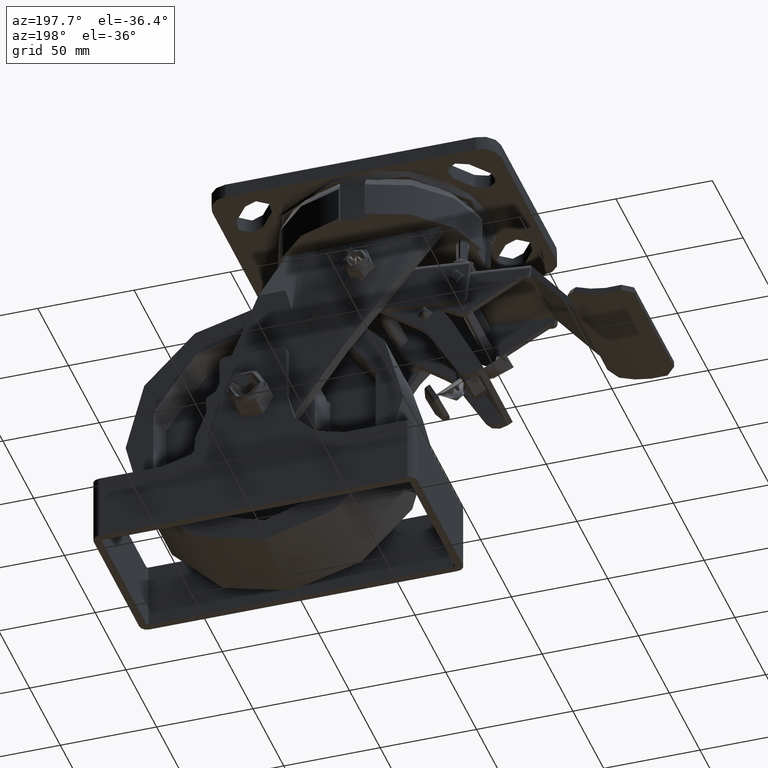
[diagram: clean part render]
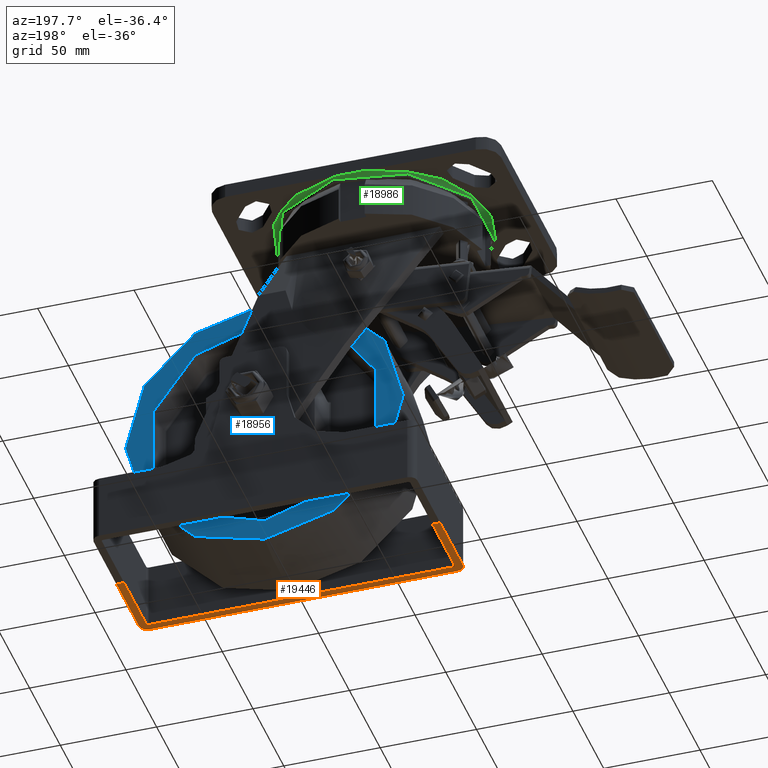
[diagram: same view with three faces highlighted in distinct colors, each labeled with its STEP entity id]
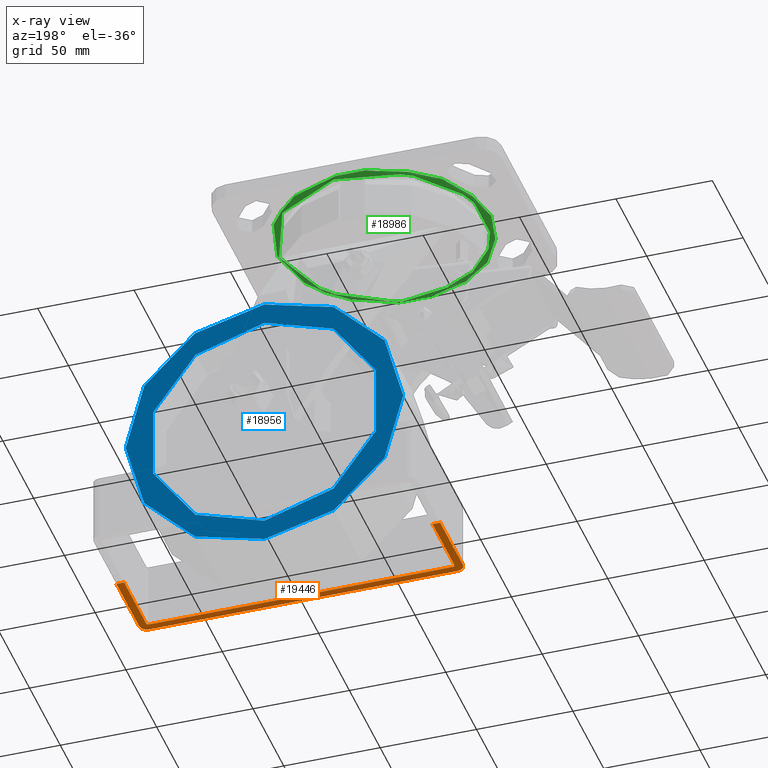
[diagram: x-ray of the same camera — body ghosted, the three highlighted faces saturated]
A machine part, auxiliary view with three faces highlighted in distinct colors.
The next image is the same camera in x-ray (body ghosted, the three faces saturated) — at least one of them is partly hidden behind the body in this view.
Their STEP definitions:

[orange] entity #19446 — the highlighted planar face has unit normal (0, 0, 1).
#1709=PLANE('',#21419);
#2748=LINE('',#72636,#4016);
#2751=LINE('',#72648,#4019);
#2756=LINE('',#72663,#4024);
#2757=LINE('',#72667,#4025);
#2758=LINE('',#72668,#4026);
#2759=LINE('',#72669,#4027);
#2760=LINE('',#72671,#4028);
#2761=LINE('',#72672,#4029);
#4016=VECTOR('',#25405,10.);
#4019=VECTOR('',#25416,10.);
#4024=VECTOR('',#25429,1000.);
#4025=VECTOR('',#25432,10.);
#4026=VECTOR('',#25433,10.);
#4027=VECTOR('',#25434,1000.);
#4028=VECTOR('',#25435,10.);
#4029=VECTOR('',#25436,10.);
#5983=FACE_OUTER_BOUND('',#7290,.T.);
#7290=EDGE_LOOP('',(#17093,#17094,#17095,#17096,#17097,#17098,#17099,#17100,
#17101,#17102,#17103,#17104));
#8156=CIRCLE('',#21410,1.);
#8157=CIRCLE('',#21413,1.);
#8160=CIRCLE('',#21418,4.);
#8161=CIRCLE('',#21420,4.);
#9613=VERTEX_POINT('',#72626);
#9614=VERTEX_POINT('',#72628);
#9616=VERTEX_POINT('',#72634);
#9617=VERTEX_POINT('',#72638);
#9618=VERTEX_POINT('',#72639);
#9621=VERTEX_POINT('',#72647);
#9625=VERTEX_POINT('',#72656);
#9626=VERTEX_POINT('',#72658);
#9627=VERTEX_POINT('',#72662);
#9628=VERTEX_POINT('',#72664);
#9629=VERTEX_POINT('',#72666);
#9630=VERTEX_POINT('',#72670);
#12172=EDGE_CURVE('',#9613,#9614,#8156,.T.);
#12176=EDGE_CURVE('',#9613,#9616,#2748,.T.);
#12177=EDGE_CURVE('',#9617,#9618,#8157,.T.);
#12181=EDGE_CURVE('',#9618,#9621,#2751,.T.);
#12186=EDGE_CURVE('',#9625,#9626,#8160,.T.);
#12188=EDGE_CURVE('',#9627,#9625,#2756,.T.);
#12189=EDGE_CURVE('',#9628,#9627,#8161,.T.);
#12190=EDGE_CURVE('',#9628,#9629,#2757,.T.);
#12191=EDGE_CURVE('',#9621,#9629,#2758,.T.);
#12192=EDGE_CURVE('',#9617,#9614,#2759,.T.);
#12193=EDGE_CURVE('',#9630,#9616,#2760,.T.);
#12194=EDGE_CURVE('',#9630,#9626,#2761,.T.);
#17093=ORIENTED_EDGE('',*,*,#12186,.F.);
#17094=ORIENTED_EDGE('',*,*,#12188,.F.);
#17095=ORIENTED_EDGE('',*,*,#12189,.F.);
#17096=ORIENTED_EDGE('',*,*,#12190,.T.);
#17097=ORIENTED_EDGE('',*,*,#12191,.F.);
#17098=ORIENTED_EDGE('',*,*,#12181,.F.);
#17099=ORIENTED_EDGE('',*,*,#12177,.F.);
#17100=ORIENTED_EDGE('',*,*,#12192,.T.);
#17101=ORIENTED_EDGE('',*,*,#12172,.F.);
#17102=ORIENTED_EDGE('',*,*,#12176,.T.);
#17103=ORIENTED_EDGE('',*,*,#12193,.F.);
#17104=ORIENTED_EDGE('',*,*,#12194,.T.);
#19446=ADVANCED_FACE('',(#5983),#1709,.F.);
#21410=AXIS2_PLACEMENT_3D('',#72629,#25398,#25399);
#21413=AXIS2_PLACEMENT_3D('',#72640,#25408,#25409);
#21418=AXIS2_PLACEMENT_3D('',#72659,#25424,#25425);
#21419=AXIS2_PLACEMENT_3D('',#72661,#25427,#25428);
#21420=AXIS2_PLACEMENT_3D('',#72665,#25430,#25431);
#25398=DIRECTION('center_axis',(0.,0.,-1.));
#25399=DIRECTION('ref_axis',(-0.707106781186548,0.707106781186548,0.));
#25405=DIRECTION('',(0.,-1.,0.));
#25408=DIRECTION('center_axis',(0.,0.,-1.));
#25409=DIRECTION('ref_axis',(0.707106781186548,0.707106781186548,0.));
#25416=DIRECTION('',(0.,-1.,0.));
#25424=DIRECTION('center_axis',(0.,0.,1.));
#25425=DIRECTION('ref_axis',(-0.707106781186547,0.707106781186548,0.));
#25427=DIRECTION('center_axis',(0.,0.,1.));
#25428=DIRECTION('ref_axis',(1.,0.,0.));
#25429=DIRECTION('',(-1.,0.,0.));
#25430=DIRECTION('center_axis',(0.,0.,1.));
#25431=DIRECTION('ref_axis',(0.707106781186547,0.707106781186548,0.));
#25432=DIRECTION('',(0.,-1.,0.));
#25433=DIRECTION('',(1.,0.,0.));
#25434=DIRECTION('',(-1.,0.,0.));
#25435=DIRECTION('',(1.,0.,0.));
#25436=DIRECTION('',(0.,1.,0.));
#72626=CARTESIAN_POINT('',(-80.,38.,0.));
#72628=CARTESIAN_POINT('',(-79.,39.,0.));
#72629=CARTESIAN_POINT('Origin',(-79.,38.,0.));
#72634=CARTESIAN_POINT('',(-80.,2.,0.));
#72636=CARTESIAN_POINT('',(-80.,39.,0.));
#72638=CARTESIAN_POINT('',(79.,39.,0.));
#72639=CARTESIAN_POINT('',(80.,38.,0.));
#72640=CARTESIAN_POINT('Origin',(79.,38.,0.));
#72647=CARTESIAN_POINT('',(80.,2.,0.));
#72648=CARTESIAN_POINT('',(80.,39.,0.));
#72656=CARTESIAN_POINT('',(-80.,43.,0.));
#72658=CARTESIAN_POINT('',(-84.,39.,0.));
#72659=CARTESIAN_POINT('Origin',(-80.,39.,0.));
#72661=CARTESIAN_POINT('Origin',(0.,0.,0.));
#72662=CARTESIAN_POINT('',(80.,43.,0.));
#72663=CARTESIAN_POINT('',(84.,43.,0.));
#72664=CARTESIAN_POINT('',(84.,39.,0.));
#72665=CARTESIAN_POINT('Origin',(80.,39.,0.));
#72666=CARTESIAN_POINT('',(84.,2.,0.));
#72667=CARTESIAN_POINT('',(84.,39.,0.));
#72668=CARTESIAN_POINT('',(80.,2.,0.));
#72669=CARTESIAN_POINT('',(80.,39.,0.));
#72670=CARTESIAN_POINT('',(-84.,2.,0.));
#72671=CARTESIAN_POINT('',(-84.,2.,0.));
#72672=CARTESIAN_POINT('',(-84.,19.5,0.));

[blue] entity #18956 — the highlighted planar face has unit normal (-0, 1, 0).
#1254=FACE_BOUND('',#6718,.T.);
#1499=PLANE('',#20565);
#5493=FACE_OUTER_BOUND('',#6717,.T.);
#6717=EDGE_LOOP('',(#14767));
#6718=EDGE_LOOP('',(#14768));
#7769=CIRCLE('',#20500,72.);
#7810=CIRCLE('',#20559,60.7425390002912);
#8848=VERTEX_POINT('',#31209);
#8893=VERTEX_POINT('',#31331);
#10972=EDGE_CURVE('',#8848,#8848,#7769,.T.);
#11030=EDGE_CURVE('',#8893,#8893,#7810,.T.);
#14767=ORIENTED_EDGE('',*,*,#10972,.F.);
#14768=ORIENTED_EDGE('',*,*,#11030,.F.);
#18956=ADVANCED_FACE('',(#5493,#1254),#1499,.T.);
#20500=AXIS2_PLACEMENT_3D('',#31211,#23014,#23015);
#20559=AXIS2_PLACEMENT_3D('',#31332,#23149,#23150);
#20565=AXIS2_PLACEMENT_3D('',#31339,#23161,#23162);
#23014=DIRECTION('center_axis',(3.49148336110938E-15,-1.,0.));
#23015=DIRECTION('ref_axis',(0.,0.,1.));
#23149=DIRECTION('center_axis',(-3.49148336110938E-15,1.,9.05073117900944E-16));
#23150=DIRECTION('ref_axis',(-1.22464679914739E-16,9.05073117900944E-16,
-1.));
#23161=DIRECTION('center_axis',(-3.49148336110938E-15,1.,9.05073117900944E-16));
#23162=DIRECTION('ref_axis',(-3.16004773173854E-30,9.05073117900944E-16,
-1.));
#31209=CARTESIAN_POINT('',(-9.08452795307755E-14,22.5,-72.));
#31211=CARTESIAN_POINT('Origin',(-8.20278225769146E-14,22.5,0.));
#31331=CARTESIAN_POINT('',(-6.71501913851566E-14,22.5,60.7425390002912));
#31332=CARTESIAN_POINT('Origin',(-8.20278225769148E-14,22.5,2.26268279475291E-16));
#31339=CARTESIAN_POINT('Origin',(-8.20278225769146E-14,22.5,66.25));

[green] entity #18986 — the highlighted toroidal blend (fillet) surface has major radius 55.5 mm and minor (blend) radius 1 mm.
#613=B_SPLINE_CURVE_WITH_KNOTS('',3,(#31519,#31520,#31521,#31522,#31523,
#31524,#31525,#31526,#31527,#31528,#31529),.UNSPECIFIED.,.F.,.F.,(4,2,3,
2,4),(-0.697015731633394,-0.483542324154075,-3.33066907387547E-16,0.483542324154075,
0.697015731633394),.UNSPECIFIED.);
#614=B_SPLINE_CURVE_WITH_KNOTS('',3,(#31533,#31534,#31535,#31536,#31537,
#31538,#31539,#31540,#31541,#31542,#31543),.UNSPECIFIED.,.F.,.F.,(4,2,3,
2,4),(-0.697015731633394,-0.483542324154075,3.33066907387547E-16,0.483542324154075,
0.697015731633394),.UNSPECIFIED.);
#1790=TOROIDAL_SURFACE('',#20649,55.5,1.);
#5523=FACE_OUTER_BOUND('',#6754,.T.);
#6754=EDGE_LOOP('',(#14895,#14896,#14897,#14898,#14899,#14900,#14901,#14902));
#7860=CIRCLE('',#20648,54.5);
#7861=CIRCLE('',#20650,1.);
#7862=CIRCLE('',#20651,55.5);
#7863=CIRCLE('',#20652,55.5);
#7864=CIRCLE('',#20653,55.5);
#8955=VERTEX_POINT('',#31510);
#8956=VERTEX_POINT('',#31514);
#8957=VERTEX_POINT('',#31516);
#8958=VERTEX_POINT('',#31518);
#8959=VERTEX_POINT('',#31530);
#8960=VERTEX_POINT('',#31532);
#11109=EDGE_CURVE('',#8955,#8955,#7860,.T.);
#11110=EDGE_CURVE('',#8955,#8956,#7861,.T.);
#11111=EDGE_CURVE('',#8956,#8957,#7862,.T.);
#11112=EDGE_CURVE('',#8958,#8957,#613,.F.);
#11113=EDGE_CURVE('',#8958,#8959,#7863,.T.);
#11114=EDGE_CURVE('',#8960,#8959,#614,.F.);
#11115=EDGE_CURVE('',#8960,#8956,#7864,.T.);
#14895=ORIENTED_EDGE('',*,*,#11109,.T.);
#14896=ORIENTED_EDGE('',*,*,#11110,.T.);
#14897=ORIENTED_EDGE('',*,*,#11111,.T.);
#14898=ORIENTED_EDGE('',*,*,#11112,.F.);
#14899=ORIENTED_EDGE('',*,*,#11113,.T.);
#14900=ORIENTED_EDGE('',*,*,#11114,.F.);
#14901=ORIENTED_EDGE('',*,*,#11115,.T.);
#14902=ORIENTED_EDGE('',*,*,#11110,.F.);
#18986=ADVANCED_FACE('',(#5523),#1790,.F.);
#20648=AXIS2_PLACEMENT_3D('',#31512,#23356,#23357);
#20649=AXIS2_PLACEMENT_3D('',#31513,#23358,#23359);
#20650=AXIS2_PLACEMENT_3D('',#31515,#23360,#23361);
#20651=AXIS2_PLACEMENT_3D('',#31517,#23362,#23363);
#20652=AXIS2_PLACEMENT_3D('',#31531,#23364,#23365);
#20653=AXIS2_PLACEMENT_3D('',#31544,#23366,#23367);
#23356=DIRECTION('center_axis',(0.,0.,1.));
#23357=DIRECTION('ref_axis',(1.,1.22464679914735E-16,0.));
#23358=DIRECTION('center_axis',(0.,0.,-1.));
#23359=DIRECTION('ref_axis',(-1.,0.,0.));
#23360=DIRECTION('center_axis',(1.22464679914735E-16,1.,0.));
#23361=DIRECTION('ref_axis',(1.,-1.22464679914735E-16,0.));
#23362=DIRECTION('center_axis',(0.,0.,-1.));
#23363=DIRECTION('ref_axis',(1.,1.22464679914735E-16,0.));
#23364=DIRECTION('center_axis',(0.,0.,-1.));
#23365=DIRECTION('ref_axis',(1.,1.22464679914735E-16,0.));
#23366=DIRECTION('center_axis',(0.,0.,-1.));
#23367=DIRECTION('ref_axis',(1.,1.22464679914735E-16,0.));
#31510=CARTESIAN_POINT('',(54.5,6.67432505535307E-15,-8.5));
#31512=CARTESIAN_POINT('Origin',(9.95451404768947E-16,0.,-8.5));
#31513=CARTESIAN_POINT('Origin',(9.95451404768947E-16,0.,-8.5));
#31514=CARTESIAN_POINT('',(55.5,-6.79678973526781E-15,-7.5));
#31515=CARTESIAN_POINT('Origin',(55.5,-6.79678973526781E-15,-8.5));
#31516=CARTESIAN_POINT('',(7.43303437365927,-55.,-7.5));
#31517=CARTESIAN_POINT('Origin',(9.95451404768947E-16,0.,-7.5));
#31518=CARTESIAN_POINT('',(-7.43303437365926,-55.,-7.5));
#31519=CARTESIAN_POINT('Ctrl Pts',(7.43303437365924,-55.,-7.5));
#31520=CARTESIAN_POINT('Ctrl Pts',(6.72145634872818,-55.,-7.5));
#31521=CARTESIAN_POINT('Ctrl Pts',(5.86771797239674,-55.,-7.5162823828799));
#31522=CARTESIAN_POINT('Ctrl Pts',(3.54505856291988,-55.,-7.57437466823569));
#31523=CARTESIAN_POINT('Ctrl Pts',(1.61180774718025,-55.,-7.63397459621556));
#31524=CARTESIAN_POINT('Ctrl Pts',(9.95451404768947E-16,-55.,-7.63397459621556));
#31525=CARTESIAN_POINT('Ctrl Pts',(-1.61180774718024,-55.,-7.63397459621556));
#31526=CARTESIAN_POINT('Ctrl Pts',(-3.54505856291988,-55.,-7.57437466823569));
#31527=CARTESIAN_POINT('Ctrl Pts',(-5.86771797239674,-55.,-7.5162823828799));
#31528=CARTESIAN_POINT('Ctrl Pts',(-6.72145634872818,-55.,-7.5));
#31529=CARTESIAN_POINT('Ctrl Pts',(-7.43303437365924,-55.,-7.5));
#31530=CARTESIAN_POINT('',(-7.43303437365926,55.,-7.5));
#31531=CARTESIAN_POINT('Origin',(9.95451404768947E-16,0.,-7.5));
#31532=CARTESIAN_POINT('',(7.43303437365927,55.,-7.5));
#31533=CARTESIAN_POINT('Ctrl Pts',(-7.43303437365924,55.,-7.5));
#31534=CARTESIAN_POINT('Ctrl Pts',(-6.72145634872818,55.,-7.5));
#31535=CARTESIAN_POINT('Ctrl Pts',(-5.86771797239674,55.,-7.5162823828799));
#31536=CARTESIAN_POINT('Ctrl Pts',(-3.54505856291988,55.,-7.57437466823569));
#31537=CARTESIAN_POINT('Ctrl Pts',(-1.61180774718024,55.,-7.63397459621556));
#31538=CARTESIAN_POINT('Ctrl Pts',(9.95451404768947E-16,55.,-7.63397459621556));
#31539=CARTESIAN_POINT('Ctrl Pts',(1.61180774718025,55.,-7.63397459621556));
#31540=CARTESIAN_POINT('Ctrl Pts',(3.54505856291988,55.,-7.57437466823569));
#31541=CARTESIAN_POINT('Ctrl Pts',(5.86771797239674,55.,-7.5162823828799));
#31542=CARTESIAN_POINT('Ctrl Pts',(6.72145634872818,55.,-7.5));
#31543=CARTESIAN_POINT('Ctrl Pts',(7.43303437365924,55.,-7.5));
#31544=CARTESIAN_POINT('Origin',(9.95451404768947E-16,0.,-7.5));